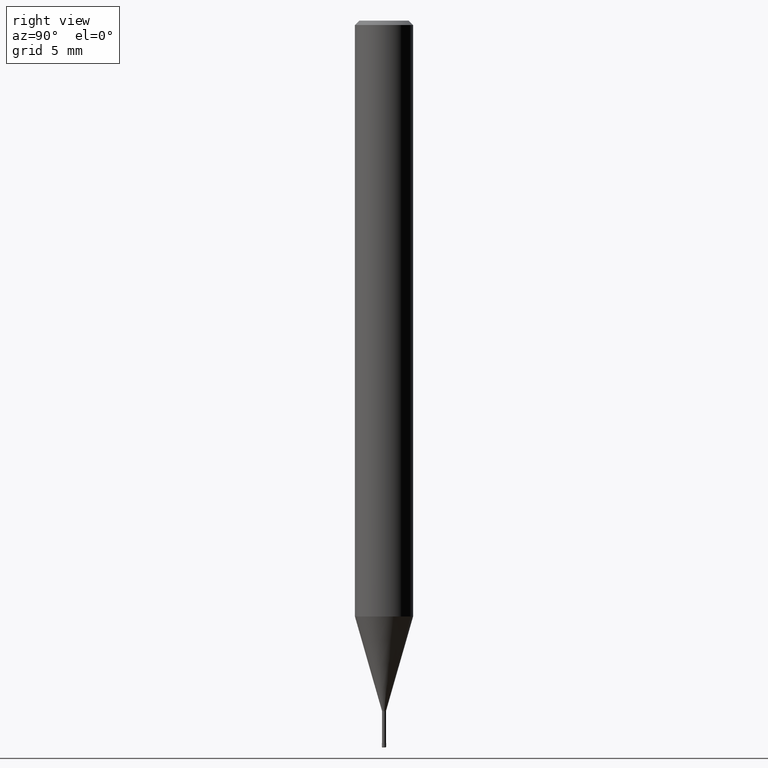
[diagram: clean part render]
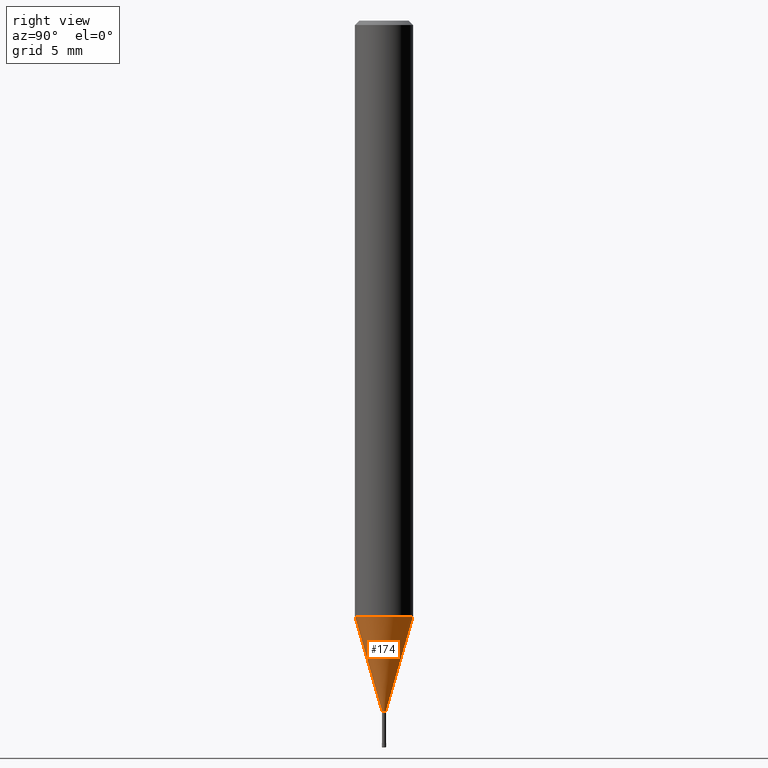
[diagram: same view with one face highlighted and labeled with its STEP entity id]
A machine part, right view. The second image highlights one B-rep face of the part: STEP entity #174.
In plain terms, the highlighted conical surface has half-angle 16 deg.
Its self-contained STEP definition (entity closure, byte-faithful):
#116=EDGE_CURVE('',#138,#182,#272,.T.);
#138=VERTEX_POINT('',#296);
#160=VERTEX_POINT('',#321);
#162=VERTEX_POINT('',#323);
#174=ADVANCED_FACE('',(#339),#340,.T.);
#180=EDGE_CURVE('',#138,#160,#346,.T.);
#182=VERTEX_POINT('',#348);
#192=EDGE_CURVE('',#160,#162,#359,.T.);
#218=EDGE_CURVE('',#162,#182,#388,.T.);
#272=CIRCLE('',#438,1.99995);
#296=CARTESIAN_POINT('',(0.0,1.99995,-40.996));
#321=CARTESIAN_POINT('',(0.0,0.13495,-47.5));
#323=CARTESIAN_POINT('',(1.6526062744833E-017,-0.13495,-47.5));
#339=FACE_OUTER_BOUND('',#520,.T.);
#340=CONICAL_SURFACE('',#521,1.06745,0.279253818445948);
#346=LINE('',#529,#530);
#348=CARTESIAN_POINT('',(2.44915147732706E-016,-1.99995,-40.996));
#359=CIRCLE('',#546,0.13495);
#388=LINE('',#583,#584);
#438=AXIS2_PLACEMENT_3D('',#633,#634,#635);
#520=EDGE_LOOP('',(#728,#729,#730,#731));
#521=AXIS2_PLACEMENT_3D('',#732,#733,#734);
#529=CARTESIAN_POINT('',(-1.3072060523877E-016,1.06745,-44.248));
#530=VECTOR('',#738,1.0);
#546=AXIS2_PLACEMENT_3D('',#751,#752,#753);
#583=CARTESIAN_POINT('',(1.3072060523877E-016,-1.06745,-44.248));
#584=VECTOR('',#787,1.0);
#633=CARTESIAN_POINT('',(0.0,0.0,-40.996));
#634=DIRECTION('',(0.0,0.0,-1.0));
#635=DIRECTION('',(0.0,1.0,0.0));
#728=ORIENTED_EDGE('',*,*,#180,.F.);
#729=ORIENTED_EDGE('',*,*,#116,.T.);
#730=ORIENTED_EDGE('',*,*,#218,.F.);
#731=ORIENTED_EDGE('',*,*,#192,.F.);
#732=CARTESIAN_POINT('',(0.0,0.0,-44.248));
#733=DIRECTION('',(-0.0,-0.0,1.0));
#734=DIRECTION('',(0.0,1.0,0.0));
#738=DIRECTION('',(3.3754859704966E-017,-0.275638449854572,-0.961261382227419));
#751=CARTESIAN_POINT('',(0.0,0.0,-47.5));
#752=DIRECTION('',(0.0,0.0,-1.0));
#753=DIRECTION('',(0.0,1.0,0.0));
#787=DIRECTION('',(3.3754859704966E-017,-0.275638449854572,0.961261382227419));